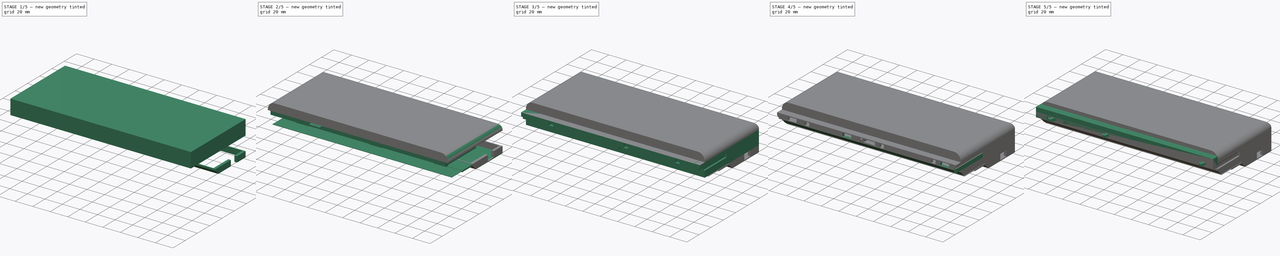
[diagram: build sequence overview — one tinted view per stage of 5, left to right]
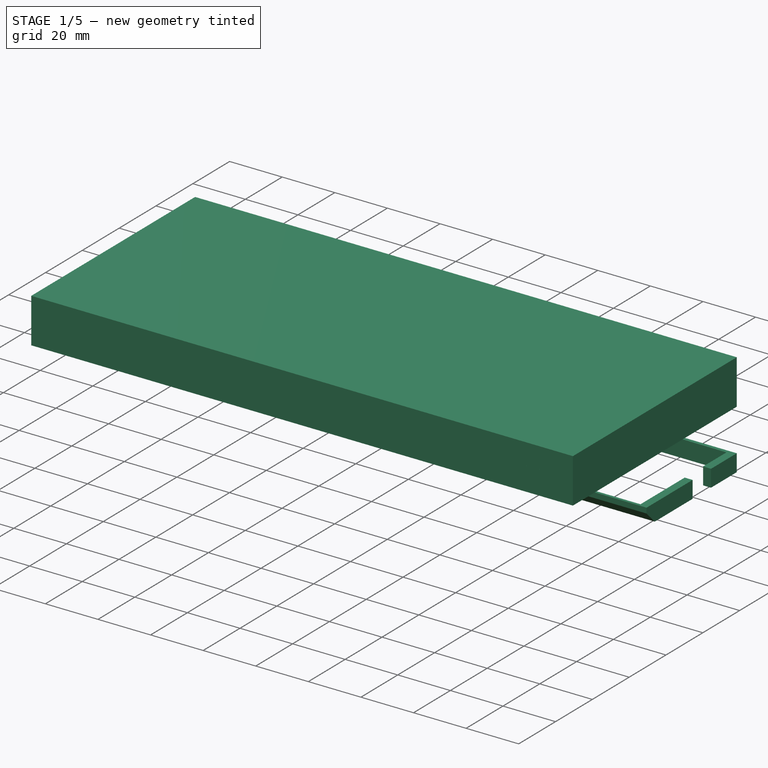
[diagram: stage 1 of 5 — iso view after this stage's code; geometry added in this stage tinted green]
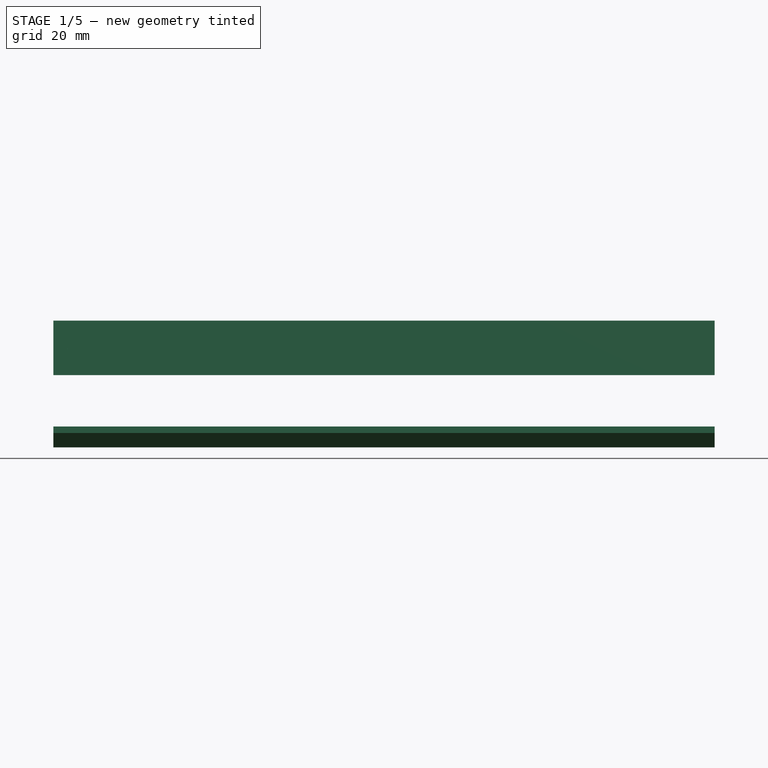
[diagram: stage 1 of 5 — front view after this stage's code; geometry added in this stage tinted green]
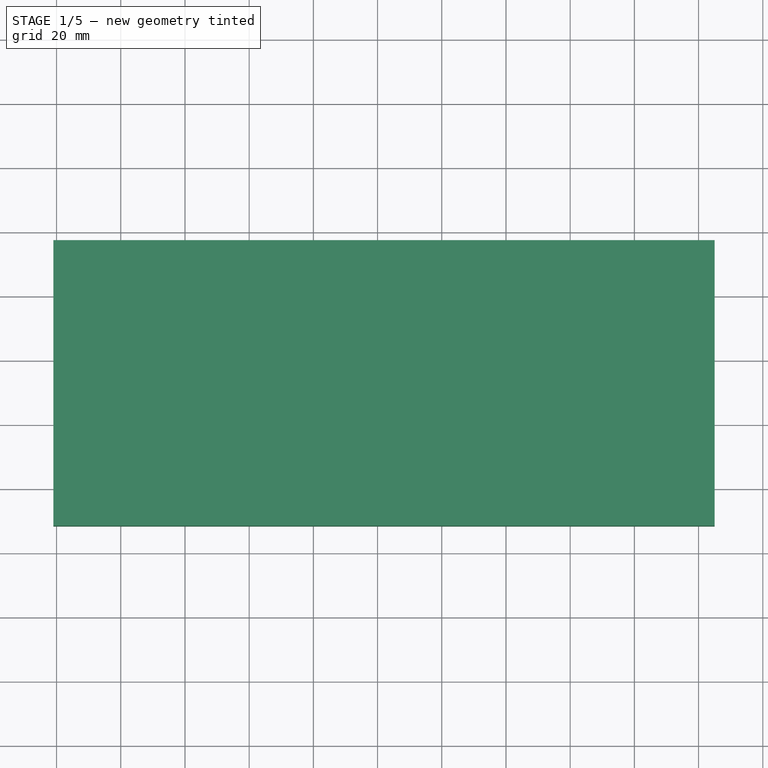
[diagram: stage 1 of 5 — top view after this stage's code; geometry added in this stage tinted green]
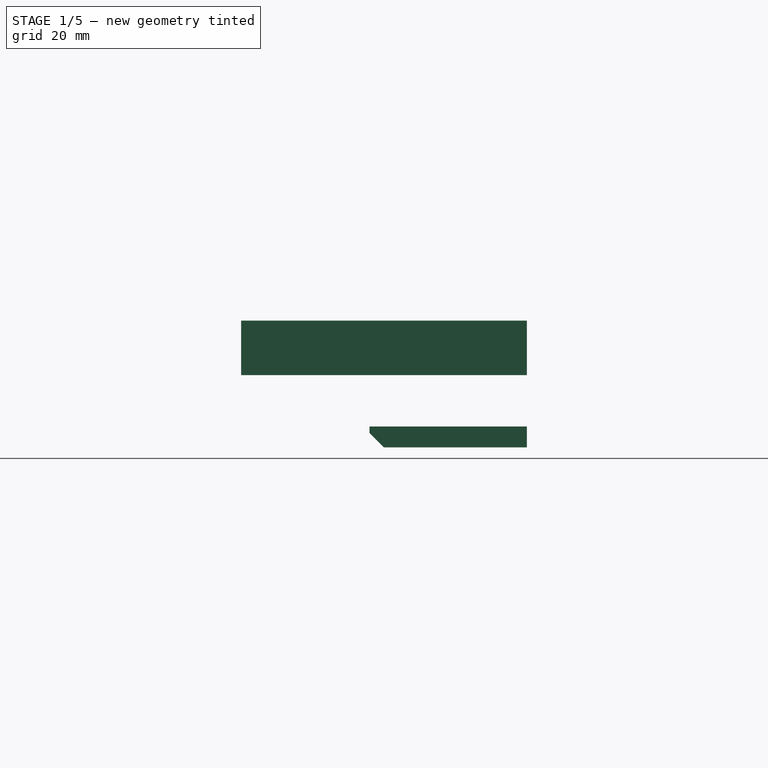
[diagram: stage 1 of 5 — right view after this stage's code; geometry added in this stage tinted green]
FCSTD DOCUMENT  (FreeCAD 0.18.4R)
Label: case
License: All rights reserved
LicenseURL: http://en.wikipedia.org/wiki/All_rights_reserved
objects: Part::Box×45, Part::Cut×29, Part::Chamfer×12, Part::MultiFuse×5, Part::Fillet×4, Part::Extrusion×3, Part::MultiCommon×2, Sketcher::SketchObject×1
note: 101 computed .brp shape members not serialized (recipe doc carries the construction recipe); baked Part::Feature solids carry a one-line shape summary decoded from their .brp

FEATURE [Part::Box] Box039  label="Cube039"
  AttacherType = Attacher::AttachEngine3D
  Height = 6.5
  Length = 200
  Placement = pos=(2,48,-3) rot=(0,0,1;0rad)
  Width = 46.7
FEATURE [Part::Box] Box038  label="Cube038"
  AttacherType = Attacher::AttachEngine3D
  Height = 7.5
  Length = 206
  Placement = pos=(-1,47,-4) rot=(0,0,1;0rad)
  Width = 49
FEATURE [Part::Cut] Cut026
  Base = -> Box038
  Placement = pos=(0,1,-3.5) rot=(0,0,1;0rad)
  Tool = -> Box039
FEATURE [Part::Box] Box040  label="Cube040"
  AttacherType = Attacher::AttachEngine3D
  Height = 9
  Length = 206
  Placement = pos=(-1,51,-3) rot=(0,0,1;0rad)
  Width = 89
FEATURE [Part::Box] Box041  label="Cube041"
  AttacherType = Attacher::AttachEngine3D
  Height = 8
  Length = 200
  Placement = pos=(2,52,-3) rot=(0,0,1;0rad)
  Width = 86.7
FEATURE [Part::Cut] Cut027
  Base = -> Box040
  Placement = pos=(0,-43,19) rot=(0,0,1;0rad)
  Tool = -> Box041
FEATURE [Part::Chamfer] Chamfer008
  Base = -> Cut026
  Edges = 1 edges r=5.5: [Edge5]
FEATURE [Part::Chamfer] Chamfer009
  Base = -> Chamfer008
  Edges = 1 edges r=5.5: [Edge23]
FEATURE [Part::Box] Box045  label="Cube045"
  AttacherType = Attacher::AttachEngine3D
  Height = 7.5
  Length = 206
  Placement = pos=(-1,48,-14) rot=(0,0,1;0rad)
  Width = 49
FEATURE [Part::Cut] Cut029
  Base = -> Chamfer009
  Tool = -> Box045
FEATURE [Part::Box] Box046  label="Cube046"
  AttacherType = Attacher::AttachEngine3D
  Height = 9
  Length = 206
  Placement = pos=(-1,8,24) rot=(0,0,1;0rad)
  Width = 89
FEATURE [Part::Box] Box047  label="Cube047"
  AttacherType = Attacher::AttachEngine3D
  Height = 9
  Length = 206
  Placement = pos=(-1,8,24) rot=(0,0,1;0rad)
  Width = 89
FEATURE [Part::Box] Box048  label="Cube048"
  AttacherType = Attacher::AttachEngine3D
  Height = 9
  Length = 206
  Placement = pos=(-1,51,-3) rot=(0,0,1;0rad)
  Width = 89
FEATURE [Part::Box] Box049  label="Cube049"
  AttacherType = Attacher::AttachEngine3D
  Height = 8
  Length = 200
  Placement = pos=(2,52,-3) rot=(0,0,1;0rad)
  Width = 86.7
FEATURE [Part::Cut] Cut030
  Base = -> Box048
  Placement = pos=(0,-43,19) rot=(0,0,1;0rad)
  Tool = -> Box049
FEATURE [Part::Fillet] Fillet002
  Base = -> Cut030
  Edges = 3 edges r=8: [Edge2,Edge8,Edge9]
FEATURE [Part::Fillet] Fillet003
  Base = -> Fillet002
  Edges = 3 edges r=6: [Edge25,Edge29,Edge31]
FEATURE [Part::MultiCommon] Common001
  Shapes = -> [Fillet003,Box046]
FEATURE [Part::Box] Box050  label="Cube050"
  AttacherType = Attacher::AttachEngine3D
  Height = 7
  Length = 10.5
  Placement = pos=(196,73,-7) rot=(0,0,1;0rad)
  Width = 10
FEATURE [Part::Cut] Cut032
  Base = -> Cut029
  Tool = -> Box050
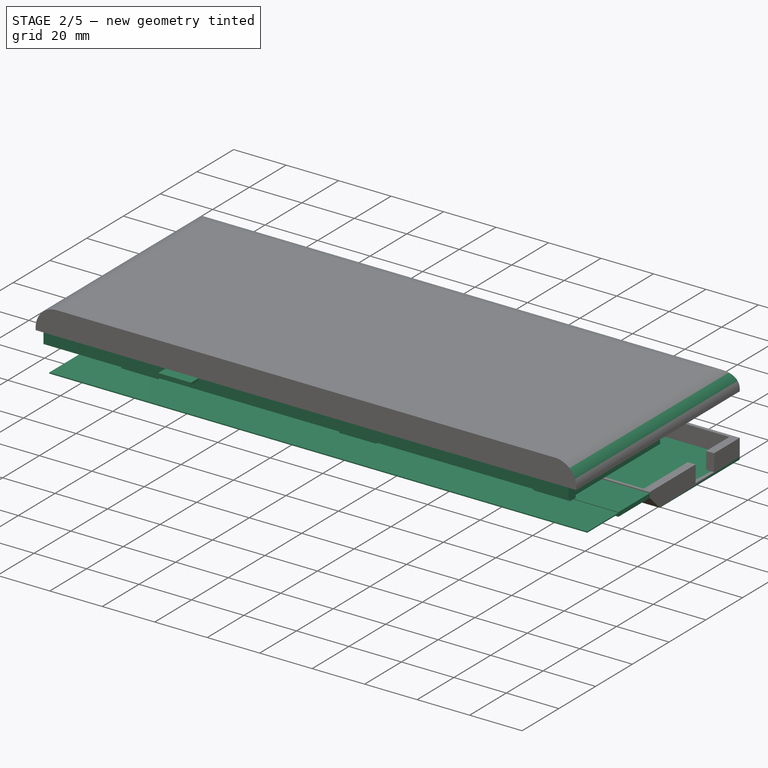
[diagram: stage 2 of 5 — iso view after this stage's code; geometry added in this stage tinted green]
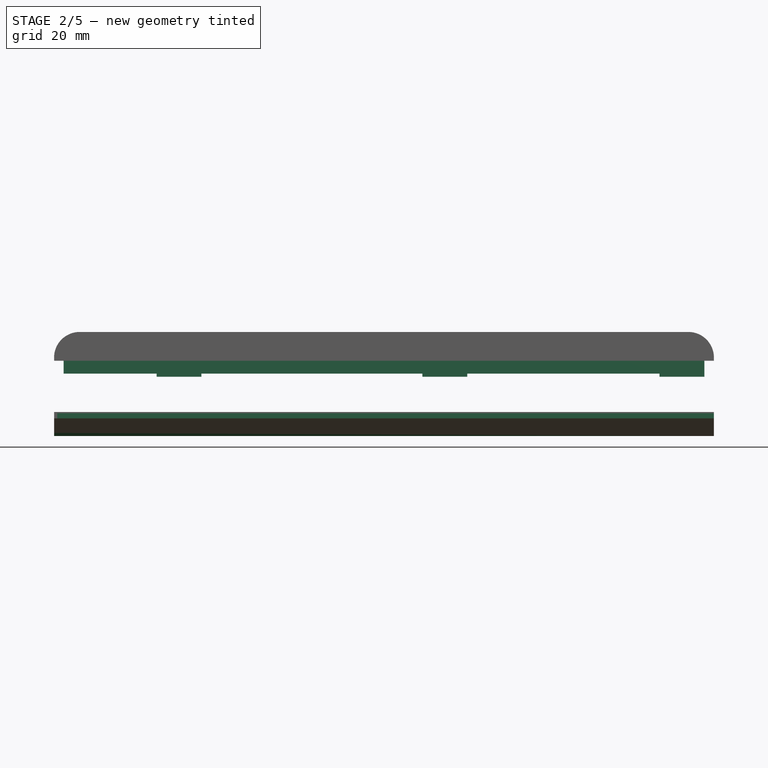
[diagram: stage 2 of 5 — front view after this stage's code; geometry added in this stage tinted green]
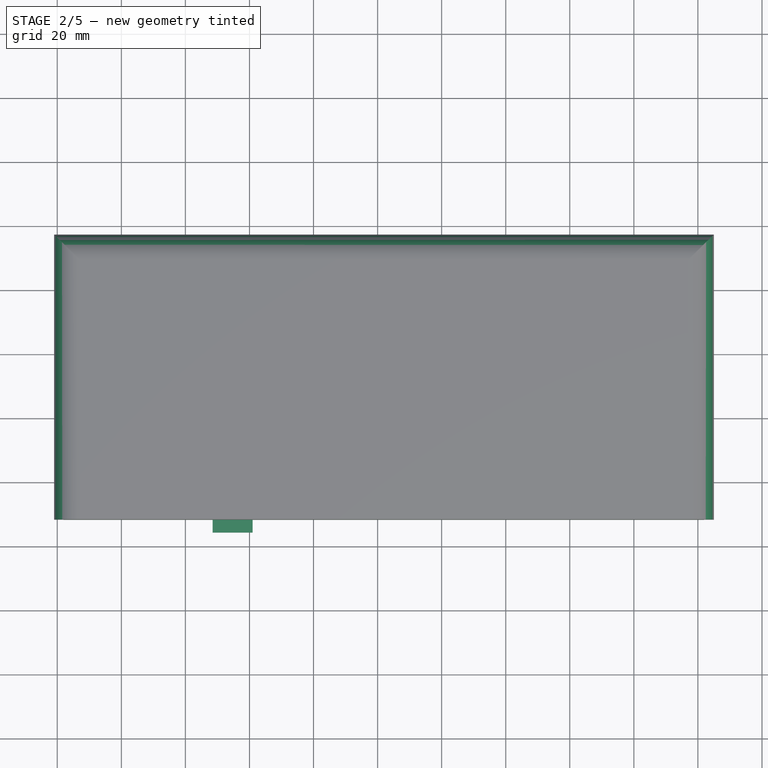
[diagram: stage 2 of 5 — top view after this stage's code; geometry added in this stage tinted green]
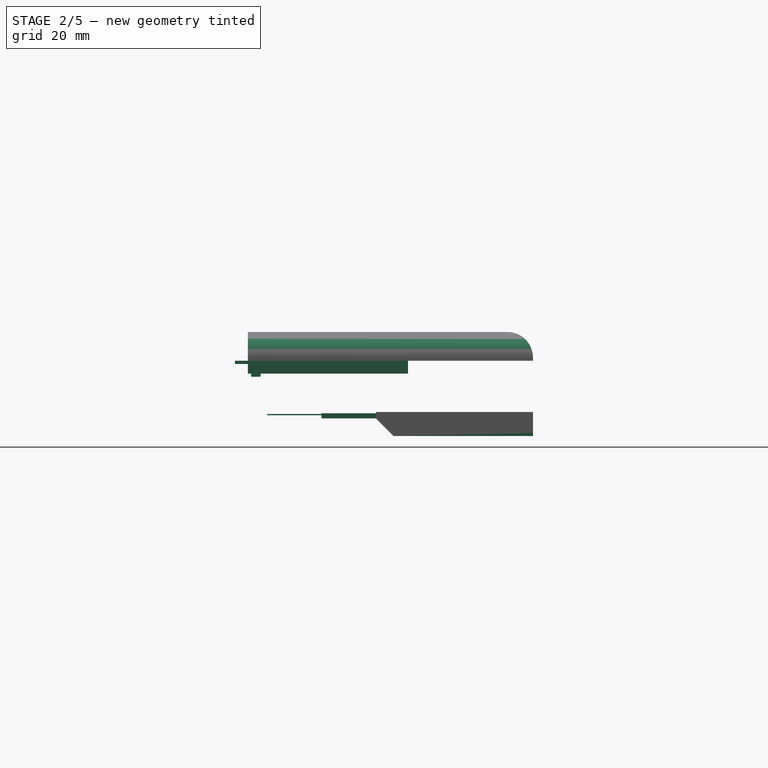
[diagram: stage 2 of 5 — right view after this stage's code; geometry added in this stage tinted green]
FEATURE [Part::Box] Box026  label="Cube026"
  AttacherType = Attacher::AttachEngine3D
  Height = 4
  Length = 200
  Placement = pos=(2,8,12) rot=(0,0,1;0rad)
  Width = 50
FEATURE [Part::Box] Box031  label="Cube031"
  AttacherType = Attacher::AttachEngine3D
  Height = 1
  Length = 12.5
  Placement = pos=(48.5,4,15) rot=(0,0,1;0rad)
  Width = 4
FEATURE [Part::Box] Box032  label="Cube032"
  AttacherType = Attacher::AttachEngine3D
  Height = 5
  Length = 14
  Placement = pos=(31,9,11) rot=(0,0,1;0rad)
  Width = 3
FEATURE [Part::Box] Box033  label="Cube033"
  AttacherType = Attacher::AttachEngine3D
  Height = 5
  Length = 14
  Placement = pos=(114,9,11) rot=(0,0,1;0rad)
  Width = 3
FEATURE [Part::Box] Box034  label="Cube034"
  AttacherType = Attacher::AttachEngine3D
  Height = 5
  Length = 14
  Placement = pos=(188,9,11) rot=(0,0,1;0rad)
  Width = 3
FEATURE [Part::Chamfer] Chamfer005
  Base = -> Box032
  Edges = 1 edges r=2.9: [Edge12]
FEATURE [Part::Chamfer] Chamfer006
  Base = -> Box033
  Edges = 1 edges r=2.8: [Edge12]
FEATURE [Part::Chamfer] Chamfer007
  Base = -> Box034
  Edges = 1 edges r=2.8: [Edge12]
FEATURE [Part::Box] Box035  label="Cube035"
  AttacherType = Attacher::AttachEngine3D
  Height = 0.4
  Length = 205
  Placement = pos=(0,14,-1) rot=(0,0,1;0rad)
  Width = 17
FEATURE [Part::Box] Box036  label="Cube036"
  AttacherType = Attacher::AttachEngine3D
  Height = 1.6
  Length = 205
  Placement = pos=(0,31,-2) rot=(0,0,1;0rad)
  Width = 17
FEATURE [Part::Fillet] Fillet
  Base = -> Cut027
  Edges = 3 edges r=8: [Edge2,Edge8,Edge9]
FEATURE [Part::Fillet] Fillet001
  Base = -> Fillet
  Edges = 3 edges r=6: [Edge25,Edge29,Edge31]
FEATURE [Part::Box] Box042  label="Cube042"
  AttacherType = Attacher::AttachEngine3D
  Height = 7.5
  Length = 206
  Placement = pos=(-1,48,-14) rot=(0,0,1;0rad)
  Width = 49
FEATURE [Part::Box] Box043  label="Cube043"
  AttacherType = Attacher::AttachEngine3D
  Height = 6.5
  Length = 200
  Placement = pos=(2,48,-3) rot=(0,0,1;0rad)
  Width = 46.7
FEATURE [Part::Box] Box044  label="Cube044"
  AttacherType = Attacher::AttachEngine3D
  Height = 7.5
  Length = 206
  Placement = pos=(-1,47,-4) rot=(0,0,1;0rad)
  Width = 49
FEATURE [Part::Cut] Cut028
  Base = -> Box044
  Placement = pos=(0,1,-3.5) rot=(0,0,1;0rad)
  Tool = -> Box043
FEATURE [Part::Chamfer] Chamfer011
  Base = -> Cut028
  Edges = 1 edges r=5.5: [Edge5]
FEATURE [Part::Chamfer] Chamfer010
  Base = -> Chamfer011
  Edges = 1 edges r=5.5: [Edge23]
FEATURE [Part::MultiCommon] Common
  Shapes = -> [Box042,Chamfer010]
FEATURE [Part::Cut] Cut031
  Base = -> Fillet001
  Tool = -> Box047
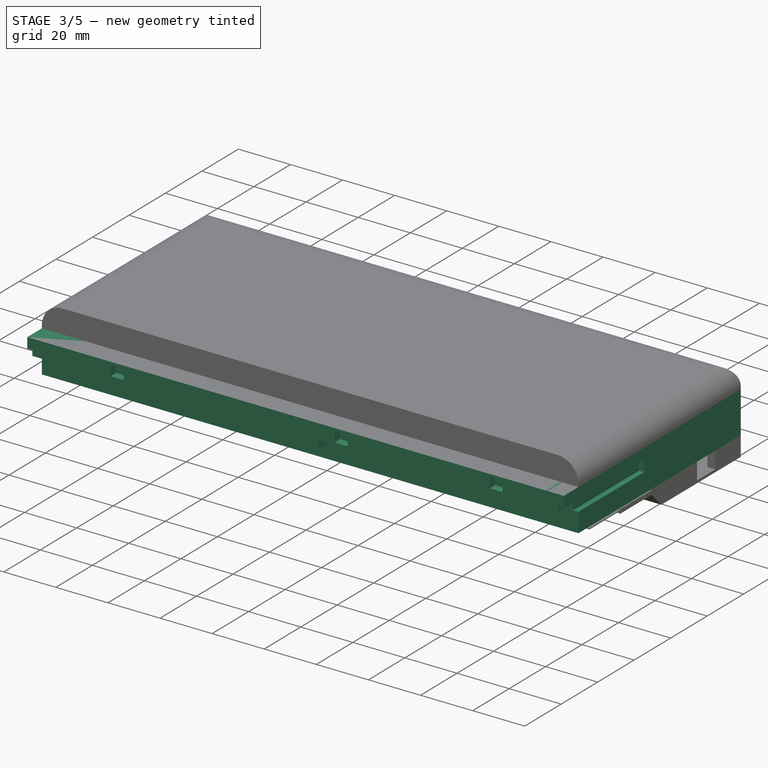
[diagram: stage 3 of 5 — iso view after this stage's code; geometry added in this stage tinted green]
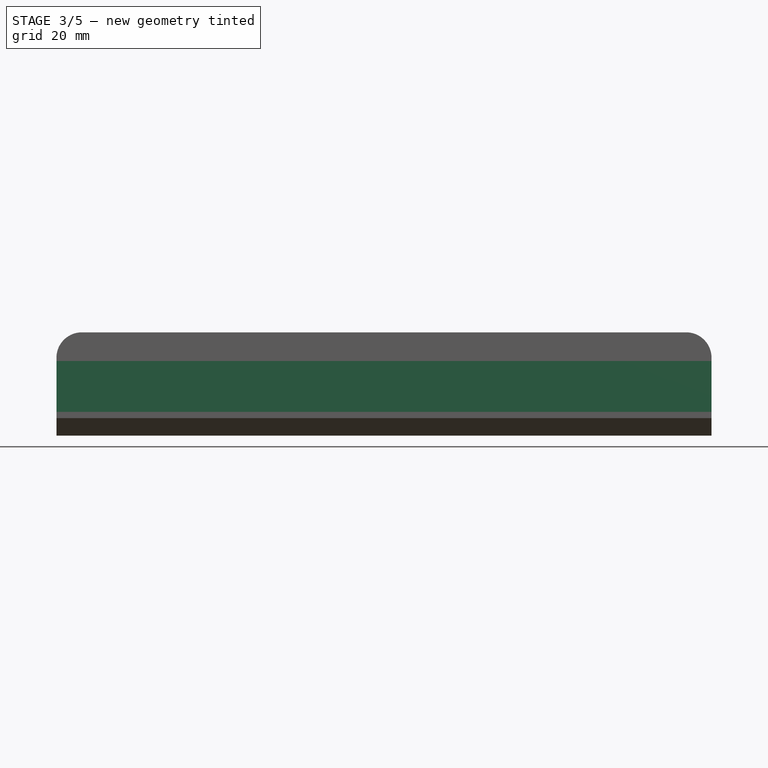
[diagram: stage 3 of 5 — front view after this stage's code; geometry added in this stage tinted green]
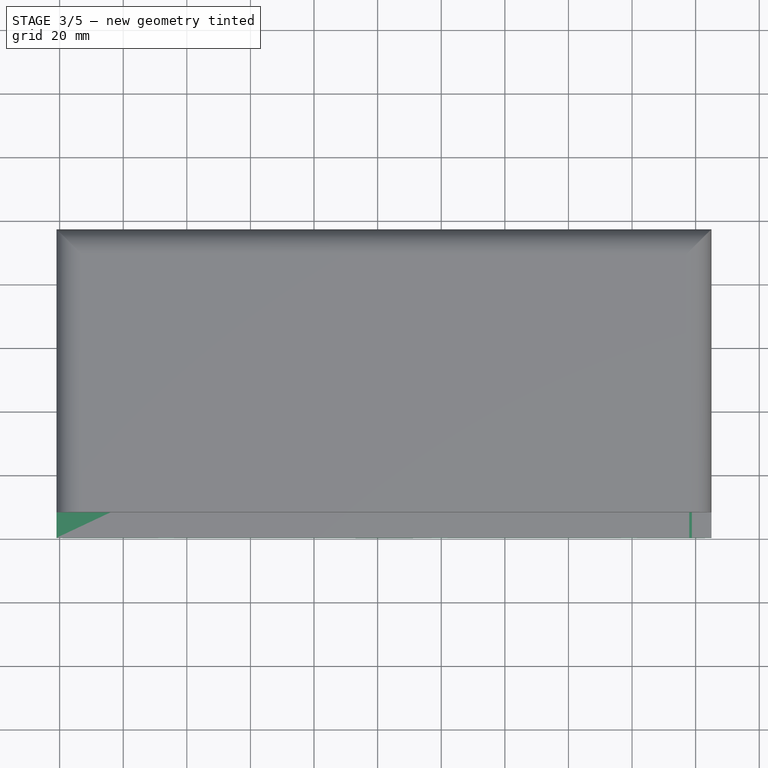
[diagram: stage 3 of 5 — top view after this stage's code; geometry added in this stage tinted green]
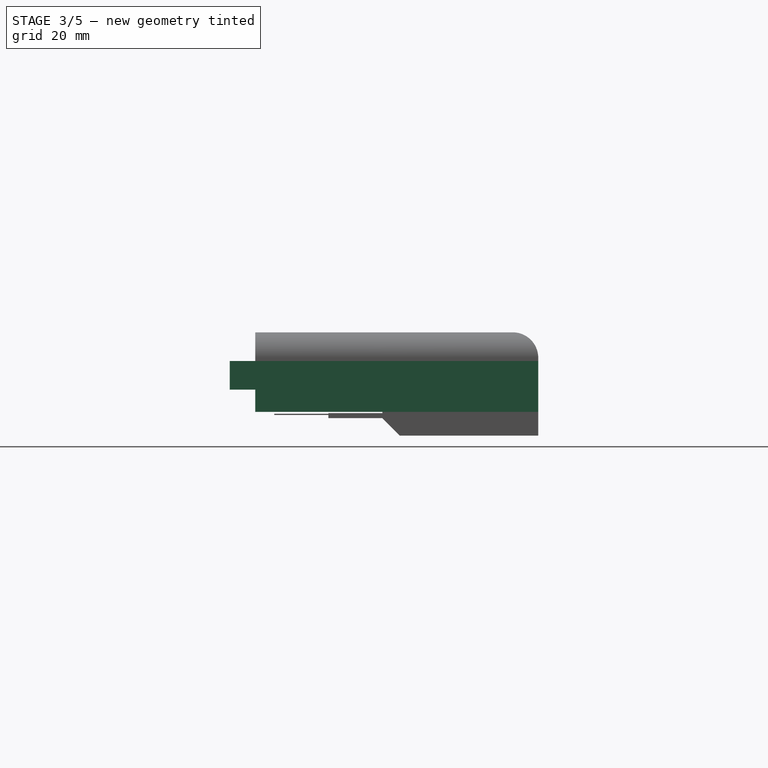
[diagram: stage 3 of 5 — right view after this stage's code; geometry added in this stage tinted green]
FEATURE [Part::Box] Box  label="Cube"
  AttacherType = Attacher::AttachEngine3D
  Height = 16
  Length = 206
  Placement = pos=(-1,0,0) rot=(0,0,1;0rad)
  Width = 97
FEATURE [Part::Box] Box001  label="Cube001"
  AttacherType = Attacher::AttachEngine3D
  Height = 4.6
  Length = 2
  Placement = pos=(-1,0,7.4) rot=(0,0,1;0rad)
  Width = 44
FEATURE [Part::Box] Box002  label="Cube002"
  AttacherType = Attacher::AttachEngine3D
  Height = 4.6
  Length = 2
  Placement = pos=(203,0,7.4) rot=(0,0,1;0rad)
  Width = 44
FEATURE [Part::Box] Box003  label="Cube003"
  AttacherType = Attacher::AttachEngine3D
  Height = 10
  Length = 208
  Placement = pos=(-2,0,0) rot=(0,0,1;0rad)
  Width = 8
FEATURE [Part::Cut] Cut
  Base = -> Box
  Tool = -> Box001
FEATURE [Part::Cut] Cut001
  Base = -> Cut
  Tool = -> Box002
FEATURE [Part::Cut] Cut002
  Base = -> Cut001
  Tool = -> Box003
FEATURE [Part::Box] Box005  label="Cube005"
  AttacherType = Attacher::AttachEngine3D
  Height = 4
  Length = 5
  Placement = pos=(176.5,0,11) rot=(0,0,1;0rad)
  Width = 3
FEATURE [Part::Box] Box006  label="Cube006"
  AttacherType = Attacher::AttachEngine3D
  Height = 4
  Length = 5
  Placement = pos=(117,0,11) rot=(0,0,1;0rad)
  Width = 3
FEATURE [Part::Cut] Cut003
  Base = -> Cut002
  Tool = -> Box006
FEATURE [Part::Box] Box007  label="Cube007"
  AttacherType = Attacher::AttachEngine3D
  Height = 8
  Length = 18
  Placement = pos=(93,0,7) rot=(0,0,1;0rad)
  Width = 60
FEATURE [Part::Box] Box008  label="Cube008"
  AttacherType = Attacher::AttachEngine3D
  Height = 16
  Length = 200
  Placement = pos=(2,13.7,0) rot=(0,0,1;0rad)
  Width = 82
FEATURE [Part::Box] Box009  label="Cube009"
  AttacherType = Attacher::AttachEngine3D
  Height = 4
  Length = 200
  Placement = pos=(2,3,11) rot=(0,0,1;0rad)
  Width = 50
FEATURE [Part::Box] Box011  label="Cube011"
  AttacherType = Attacher::AttachEngine3D
  Height = 4
  Length = 10
  Placement = pos=(11.5,0,11) rot=(0,0,1;0rad)
  Width = 10.78
FEATURE [Part::Box] Box004  label="Cube004"
  AttacherType = Attacher::AttachEngine3D
  Height = 4
  Length = 5
  Placement = pos=(31,0,11) rot=(0,0,1;0rad)
  Width = 3
FEATURE [Part::Cut] Cut004
  Base = -> Cut003
  Tool = -> Box004
FEATURE [Part::Cut] Cut005
  Base = -> Cut004
  Tool = -> Box005
FEATURE [Part::Box] Box020  label="Cube020"
  AttacherType = Attacher::AttachEngine3D
  Height = 3
  Length = 25
  Placement = pos=(90,15,0) rot=(0,0,1;0rad)
  Width = 24
FEATURE [Part::Box] Box021  label="Cube021"
  AttacherType = Attacher::AttachEngine3D
  Height = 5
  Length = 0.8
  Placement = pos=(198,0,11) rot=(0,0,1;0rad)
  Width = 8
FEATURE [Part::Box] Box022  label="Cube022"
  AttacherType = Attacher::AttachEngine3D
  Height = 4
  Length = 21
  Placement = pos=(91.5,0,11) rot=(0,0,1;0rad)
  Width = 1
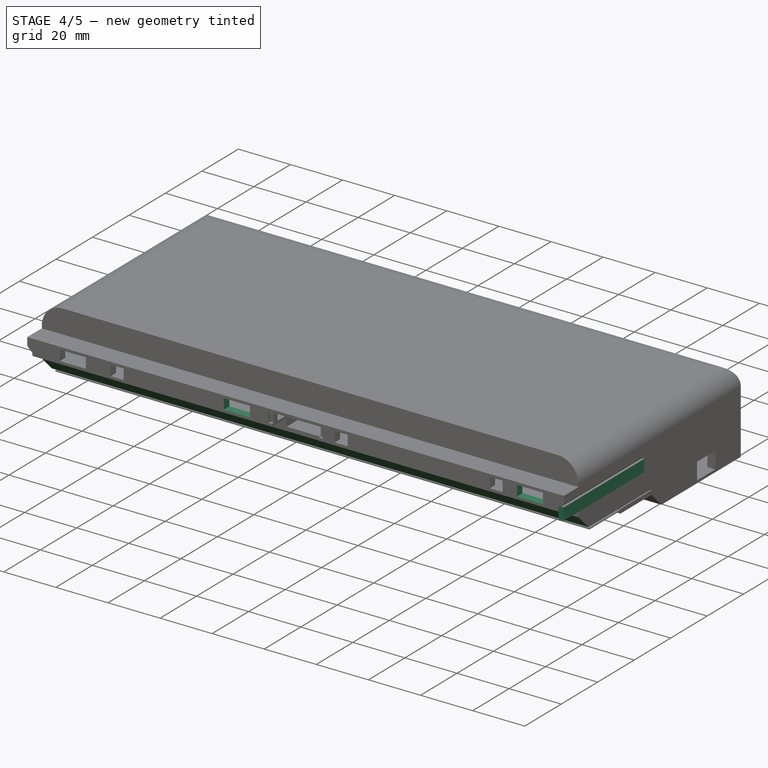
[diagram: stage 4 of 5 — iso view after this stage's code; geometry added in this stage tinted green]
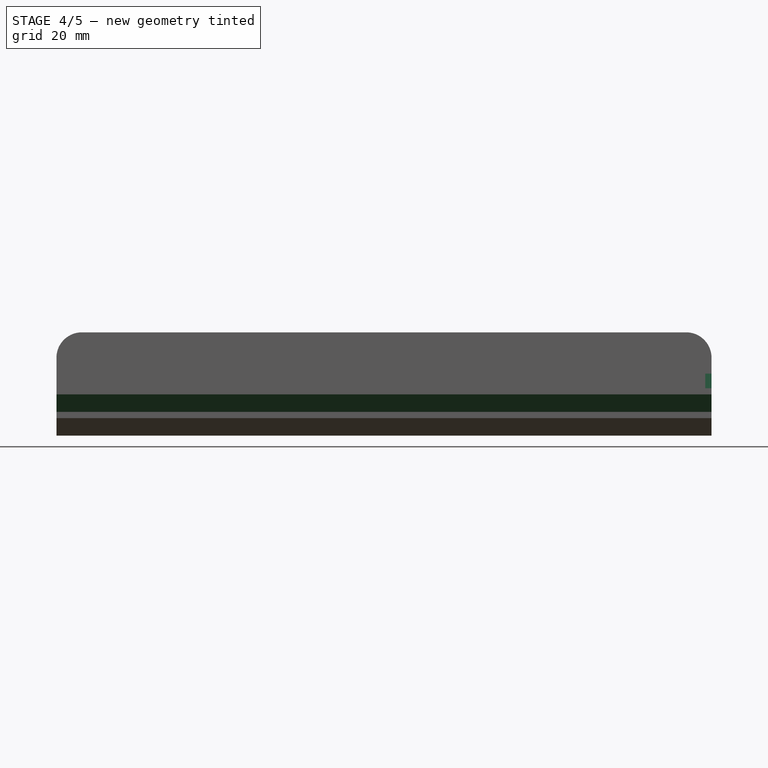
[diagram: stage 4 of 5 — front view after this stage's code; geometry added in this stage tinted green]
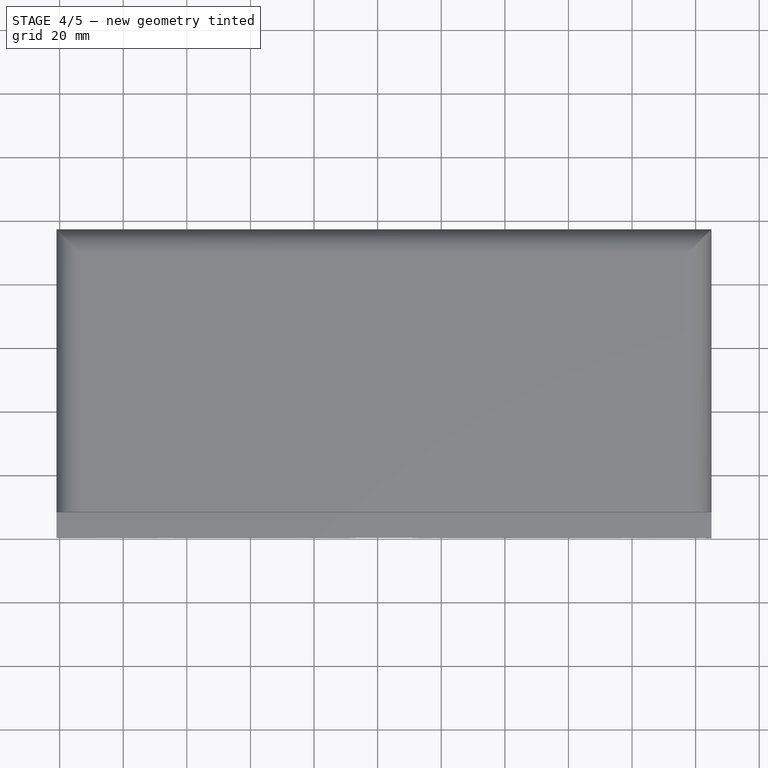
[diagram: stage 4 of 5 — top view after this stage's code; geometry added in this stage tinted green]
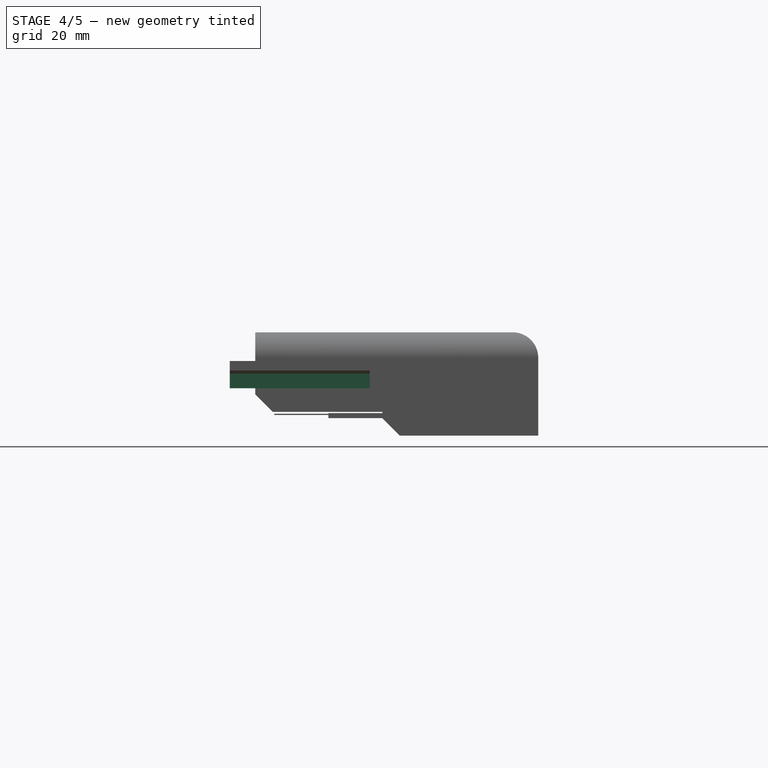
[diagram: stage 4 of 5 — right view after this stage's code; geometry added in this stage tinted green]
FEATURE [Part::Box] Box012  label="Cube012"
  AttacherType = Attacher::AttachEngine3D
  Height = 4
  Length = 10
  Placement = pos=(74.5,0,11) rot=(0,0,1;0rad)
  Width = 10.78
FEATURE [Part::Box] Box013  label="Cube013"
  AttacherType = Attacher::AttachEngine3D
  Height = 4
  Length = 10
  Placement = pos=(187,0,11) rot=(0,0,1;0rad)
  Width = 10.78
FEATURE [Part::Cut] Cut006
  Base = -> Cut005
  Tool = -> Box007
FEATURE [Part::Cut] Cut007
  Base = -> Cut006
  Tool = -> Box008
FEATURE [Part::Cut] Cut008  label="All"
  Base = -> Cut007
  Tool = -> Box009
FEATURE [Part::Cut] Cut009
  Base = -> Cut008
  Tool = -> Box011
FEATURE [Part::Cut] Cut010
  Base = -> Cut009
  Tool = -> Box013
FEATURE [Part::Cut] Cut011
  Base = -> Cut010
  Tool = -> Box012
FEATURE [Part::Chamfer] Chamfer
  Base = -> Cut011
  Edges = 1 edges r=5.5: [Edge9]
FEATURE [Part::Cut] Cut017
  Base = -> Chamfer
  Tool = -> Box020
FEATURE [Part::MultiFuse] Fusion001
  Shapes = -> [Cut017,Box021]
FEATURE [Part::Cut] Cut019
  Base = -> Fusion001
  Tool = -> Box022
FEATURE [Part::Chamfer] Chamfer001
  Base = -> Box001
  Edges = 1 edges r=1: [Edge6]
FEATURE [Part::Box] Box023  label="Cube023"
  AttacherType = Attacher::AttachEngine3D
  Height = 4.6
  Length = 2
  Placement = pos=(-1,0,7.4) rot=(0,0,1;0rad)
  Width = 44
FEATURE [Part::Cut] Cut020
  Base = -> Box023
  Tool = -> Chamfer001
FEATURE [Part::Chamfer] Chamfer002
  Base = -> Cut019
  Edges = 1 edges r=1: [Edge72]
FEATURE [Part::MultiFuse] Fusion002
  Shapes = -> [Chamfer002,Cut020]
FEATURE [Part::Box] Box024  label="Cube024"
  AttacherType = Attacher::AttachEngine3D
  Height = 4.6
  Length = 2
  Placement = pos=(203,0,7.4) rot=(0,0,1;0rad)
  Width = 44
FEATURE [Part::Box] Box025  label="Cube025"
  AttacherType = Attacher::AttachEngine3D
  Height = 4.6
  Length = 2
  Placement = pos=(203,0,7.4) rot=(0,0,1;0rad)
  Width = 44
FEATURE [Part::Chamfer] Chamfer004
  Base = -> Fusion002
  Edges = 1 edges r=1: [Edge94]
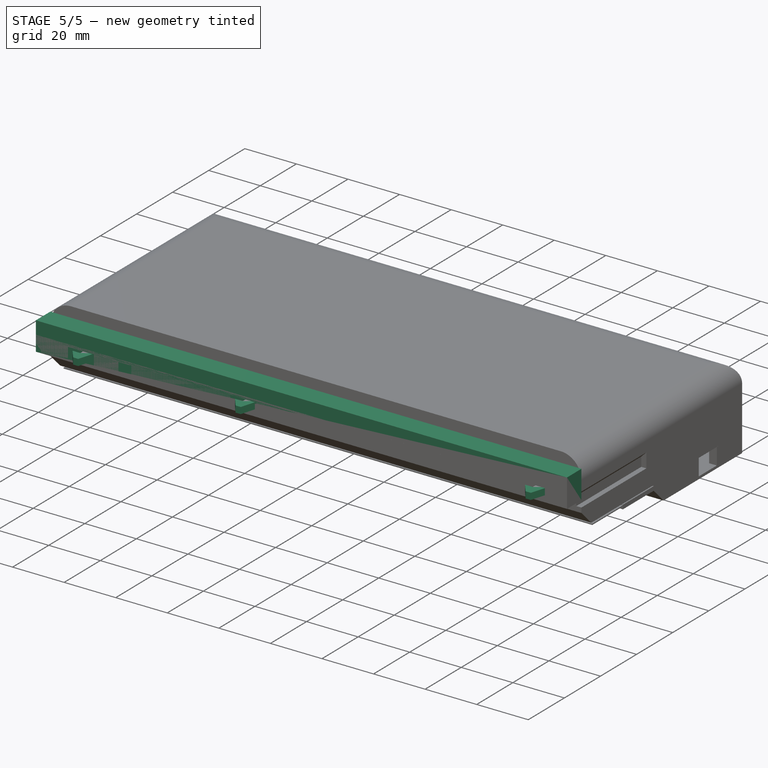
[diagram: stage 5 of 5 — iso view after this stage's code; geometry added in this stage tinted green]
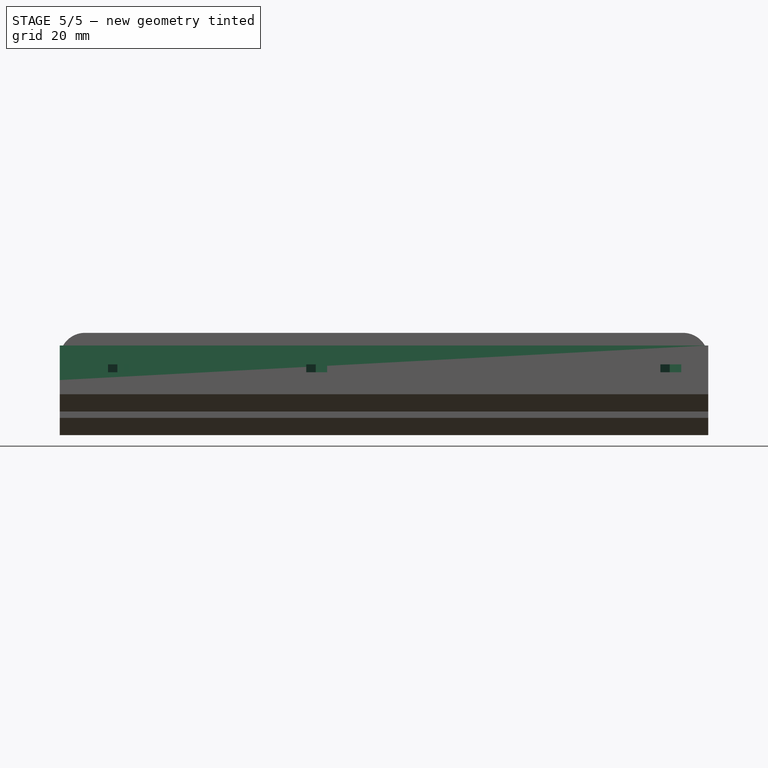
[diagram: stage 5 of 5 — front view after this stage's code; geometry added in this stage tinted green]
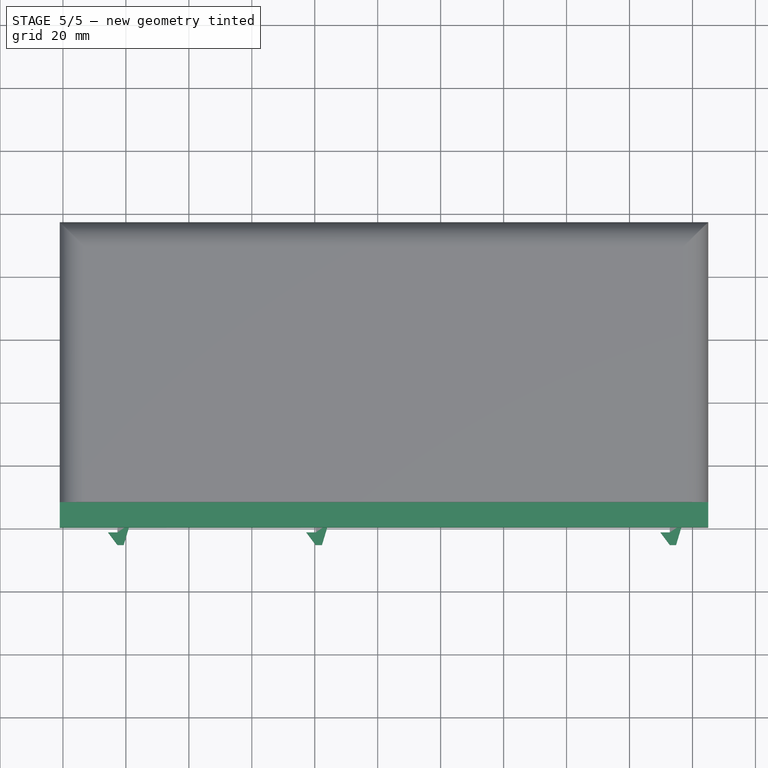
[diagram: stage 5 of 5 — top view after this stage's code; geometry added in this stage tinted green]
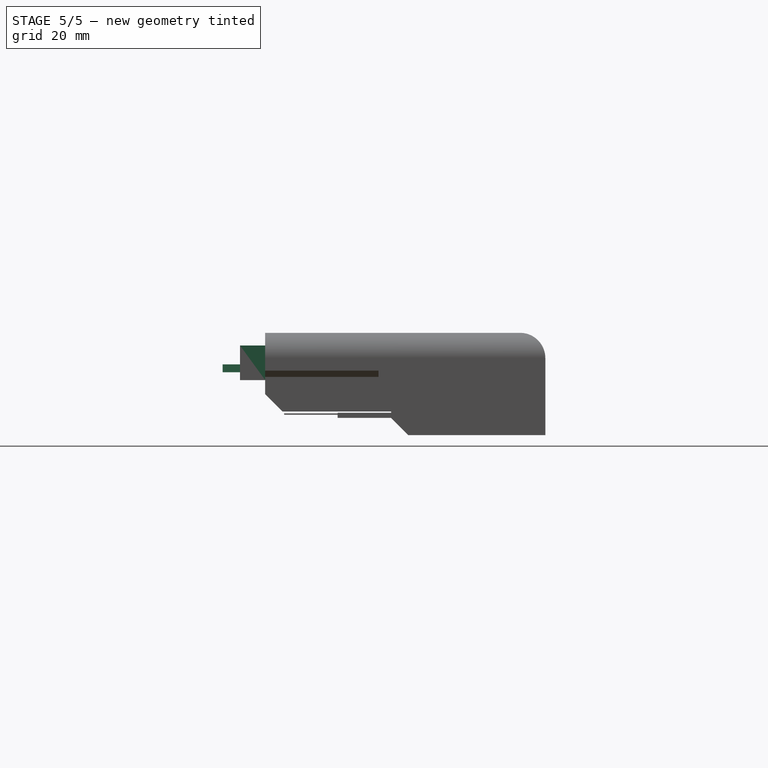
[diagram: stage 5 of 5 — right view after this stage's code; geometry added in this stage tinted green]
FEATURE [Part::Box] Box010  label="Cube010"
  AttacherType = Attacher::AttachEngine3D
  Height = 11
  Length = 206
  Placement = pos=(-1,0,10) rot=(0,0,1;0rad)
  Width = 8
FEATURE [Sketcher::SketchObject] Sketch
  sketch-geometry (8):
    g0: LineSegment StartX=4 StartY=6.59248 StartZ=0 EndX=2 EndY=13.3007 EndZ=0
    g1: LineSegment StartX=2 StartY=13.3007 StartZ=0 EndX=-4e-16 EndY=13.3007 EndZ=0
    g2: LineSegment StartX=-4e-16 StartY=13.3007 StartZ=0 EndX=-3 EndY=9.30068 EndZ=0
    g3: LineSegment StartX=-3 StartY=9.30068 StartZ=0 EndX=-4e-16 EndY=9.30068 EndZ=0
    g4: LineSegment StartX=-4e-16 StartY=9.30068 StartZ=0 EndX=0 EndY=6.59248 EndZ=0
    g5: LineSegment StartX=4 StartY=6.59248 StartZ=0 EndX=4 EndY=0 EndZ=0
    g6: LineSegment StartX=4 StartY=0 StartZ=0 EndX=0 EndY=0 EndZ=0
    g7: LineSegment StartX=0 StartY=0 StartZ=0 EndX=0 EndY=6.59248 EndZ=0
  constraints (22):
    c: Coincident(g1,g2)
    c: Coincident(g2,g3)
    c: Perpendicular(g3,g4)
    c: Coincident(g3,g4)
    c: Coincident(g1,g0)
    c: Vertical(g1,g3)
    c: Distance(g1) = 2
    c: Distance(g3) = 3
    c: Coincident(g5,g6)
    c: Coincident(g6,g7)
    c: Horizontal(g6)
    c: Vertical(g5)
    c: Vertical(g7)
    c: Coincident(g0,g5)
    c: Coincident(g7,g4)
    c: Distance(g6) = 4
    c: Angle(g4,g7,g4) = 3.14159
    c: Distance(g2) = 5
    c: Parallel(g1,g6)
    c: Distance(g0) = 7
    c: Coincident(g6,g-1)
    c: Horizontal(g4,g0)
FEATURE [Part::Box] Box016  label="Cube016"
  AttacherType = Attacher::AttachEngine3D
  Height = 5
  Length = 8
  Placement = pos=(104,4,11) rot=(0,0,1;0rad)
  Width = 1.5
FEATURE [Part::Extrusion] Extrude002
  Base = -> Sketch
  Dir = (0,0,1)
  DirMode = 2
  FaceMakerClass = Part::FaceMakerBullseye
  LengthFwd = 2.5
  LengthRev = 0
  Placement = pos=(151.3,-28.8,0) rot=(0,0,1;0rad)
  Solid = true
  Symmetric = false
FEATURE [Part::Extrusion] Extrude
  Base = -> Sketch
  Dir = (0,0,1)
  DirMode = 2
  FaceMakerClass = Part::FaceMakerBullseye
  LengthFwd = 2.5
  LengthRev = 0
  Placement = pos=(-24.2,-28.8,0) rot=(0,0,1;0rad)
  Solid = true
  Symmetric = false
FEATURE [Part::Extrusion] Extrude001
  Base = -> Sketch
  Dir = (0,0,1)
  DirMode = 2
  FaceMakerClass = Part::FaceMakerBullseye
  LengthFwd = 2.5
  LengthRev = 0
  Placement = pos=(38.8,-28.8,0) rot=(0,0,1;0rad)
  Solid = true
  Symmetric = false
FEATURE [Part::Box] Box015  label="Cube015"
  AttacherType = Attacher::AttachEngine3D
  Height = 3
  Length = 179.5
  Placement = pos=(-24.2,-30,0) rot=(0,0,1;0rad)
  Width = 5
FEATURE [Part::MultiFuse] Fusion
  Placement = pos=(42.5,-21,16) rot=(1,0,0;3.14159rad)
  Shapes = -> [Box015,Extrude002,Extrude,Extrude001]
FEATURE [Part::Cut] Cut013  label="Latch"
  Base = -> Fusion
  Placement = pos=(0,0,-1) rot=(0,0,1;0rad)
  Tool = -> Box016
FEATURE [Part::Box] Box017  label="Cube017"
  AttacherType = Attacher::AttachEngine3D
  Height = 5
  Length = 5
  Placement = pos=(197,6,11) rot=(0,0,1;1.5708rad)
  Width = 1.5
FEATURE [Part::Cut] Cut018
  Base = -> Cut013
  Tool = -> Box017
FEATURE [Part::Chamfer] Chamfer003
  Base = -> Box024
  Edges = 1 edges r=1: [Edge2]
FEATURE [Part::Cut] Cut021
  Base = -> Box025
  Tool = -> Chamfer003
FEATURE [Part::MultiFuse] Fusion003
  Shapes = -> [Chamfer004,Cut021]
FEATURE [Part::Cut] Cut022
  Base = -> Fusion003
  Tool = -> Box026
FEATURE [Part::Box] Box029  label="Cube029"
  AttacherType = Attacher::AttachEngine3D
  Height = 5
  Length = 28
  Placement = pos=(92,4,8.5) rot=(0,0,1;0rad)
  Width = 7.5
FEATURE [Part::Cut] Cut023
  Base = -> Cut018
  Tool = -> Box029
FEATURE [Part::Box] Box030  label="Cube030"
  AttacherType = Attacher::AttachEngine3D
  Height = 5
  Length = 28
  Placement = pos=(92,-3,10.5) rot=(0,0,1;0rad)
  Width = 8
FEATURE [Part::Cut] Cut024
  Base = -> Cut023
  Placement = pos=(-1,0,0) rot=(0,0,1;0rad)
  Tool = -> Box030
FEATURE [Part::Cut] Cut025
  Base = -> Cut022
  Tool = -> Box031
FEATURE [Part::MultiFuse] Fusion004
  Shapes = -> [Cut025,Chamfer005,Chamfer006,Chamfer007]
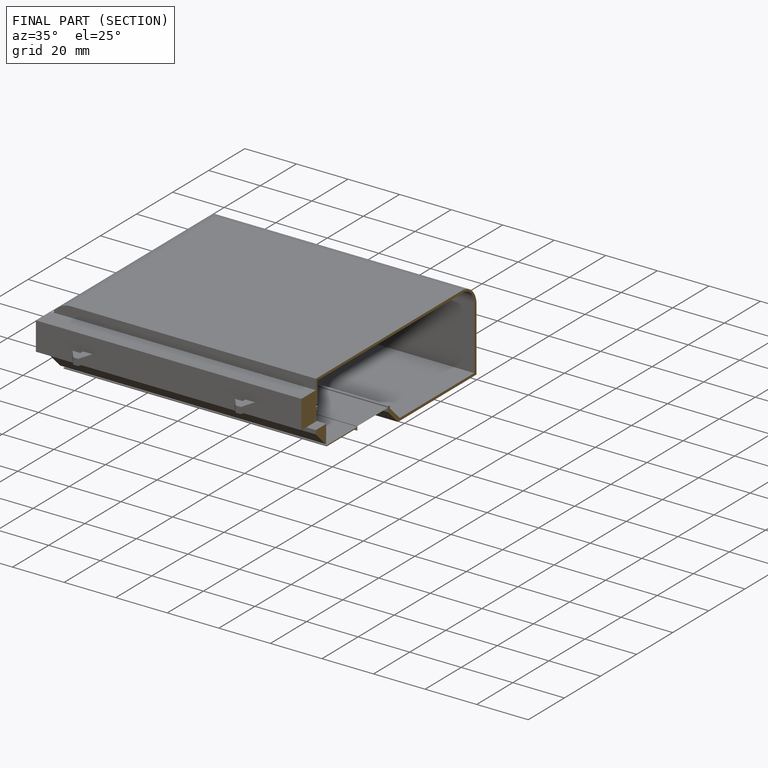
[diagram: finished part — half-section view (interior)]
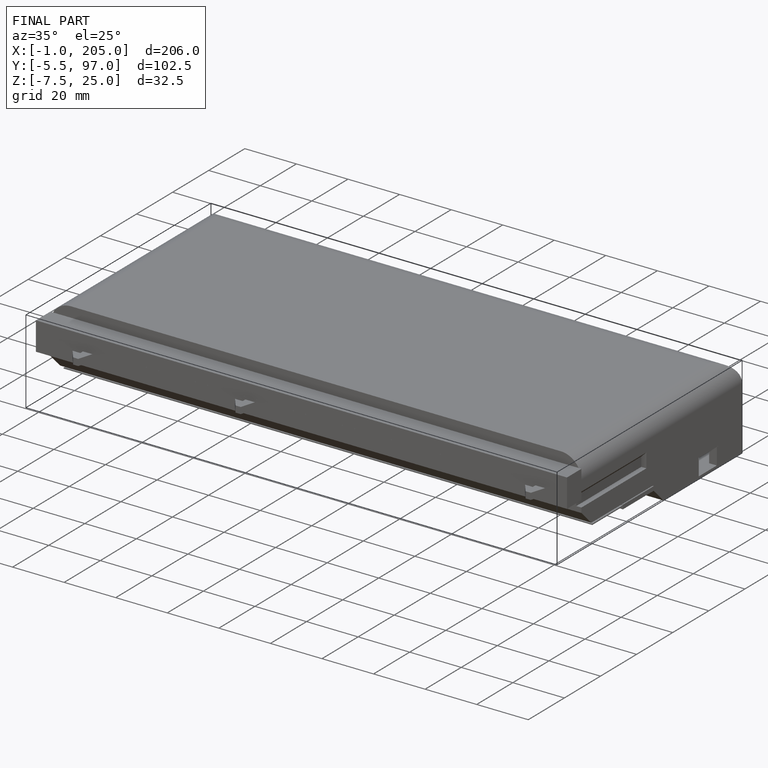
[diagram: finished part — iso view with bounding-box wireframe]
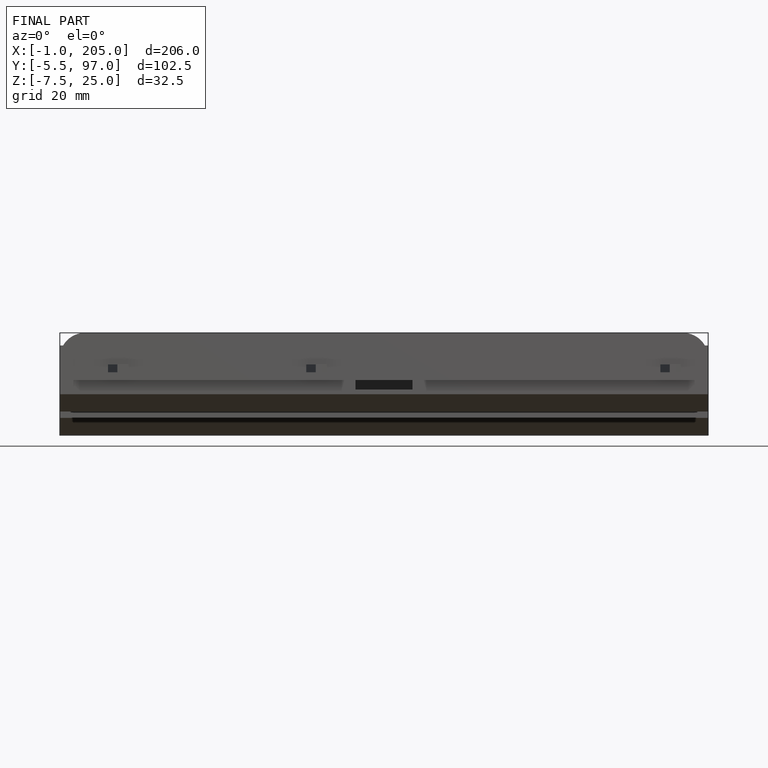
[diagram: finished part — front view with bounding-box wireframe]
